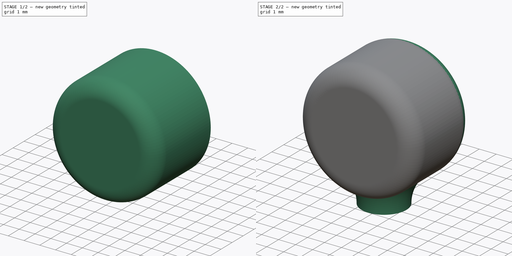
[diagram: build sequence overview — one tinted view per stage of 2, left to right]
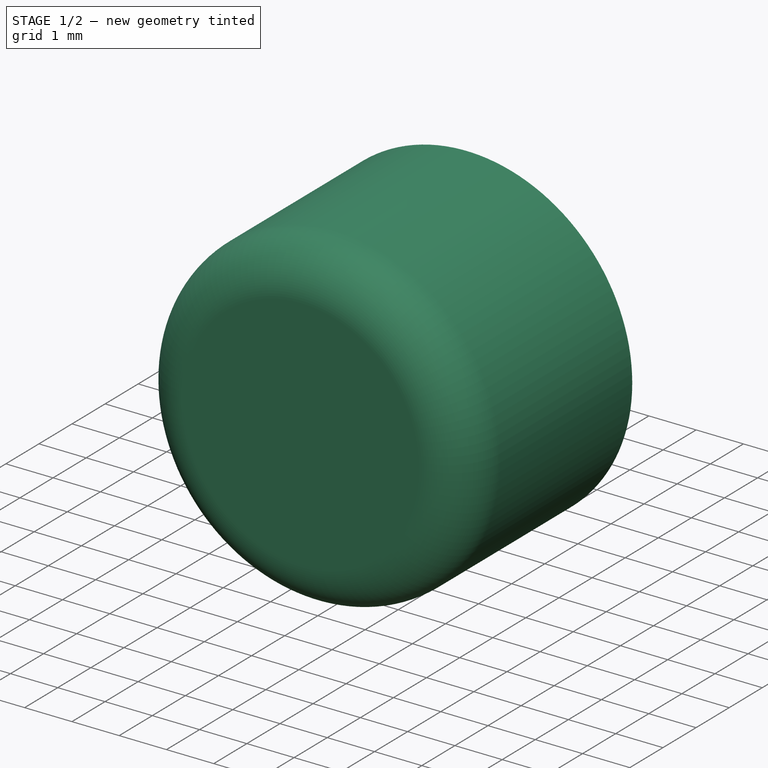
[diagram: stage 1 of 2 — iso view after this stage's code; geometry added in this stage tinted green]
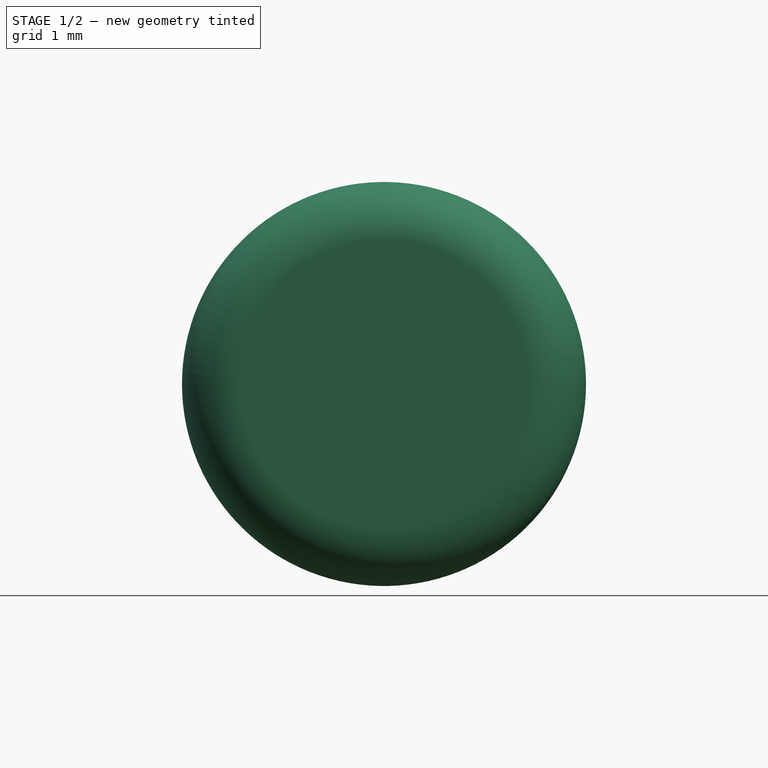
[diagram: stage 1 of 2 — front view after this stage's code; geometry added in this stage tinted green]
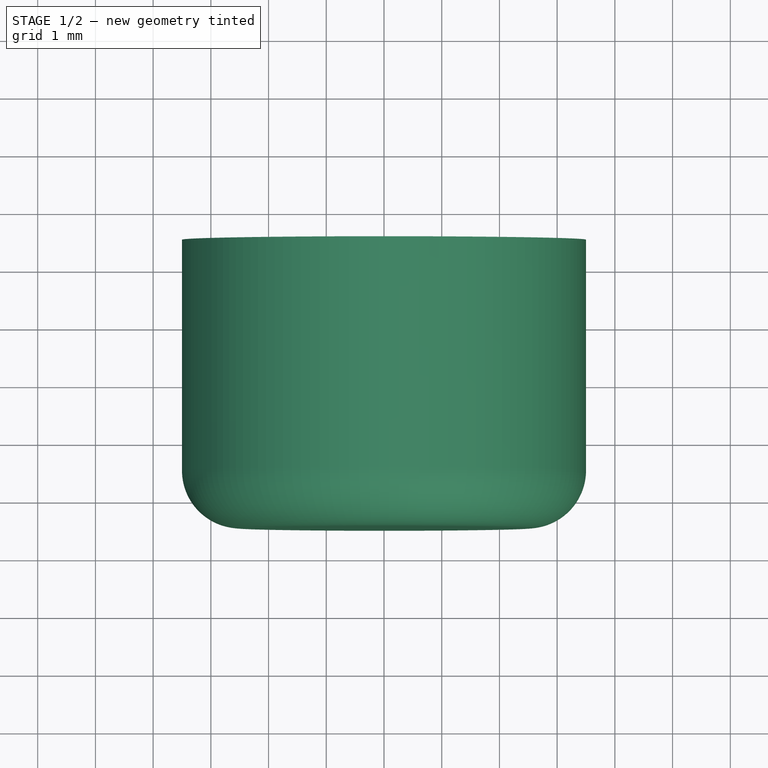
[diagram: stage 1 of 2 — top view after this stage's code; geometry added in this stage tinted green]
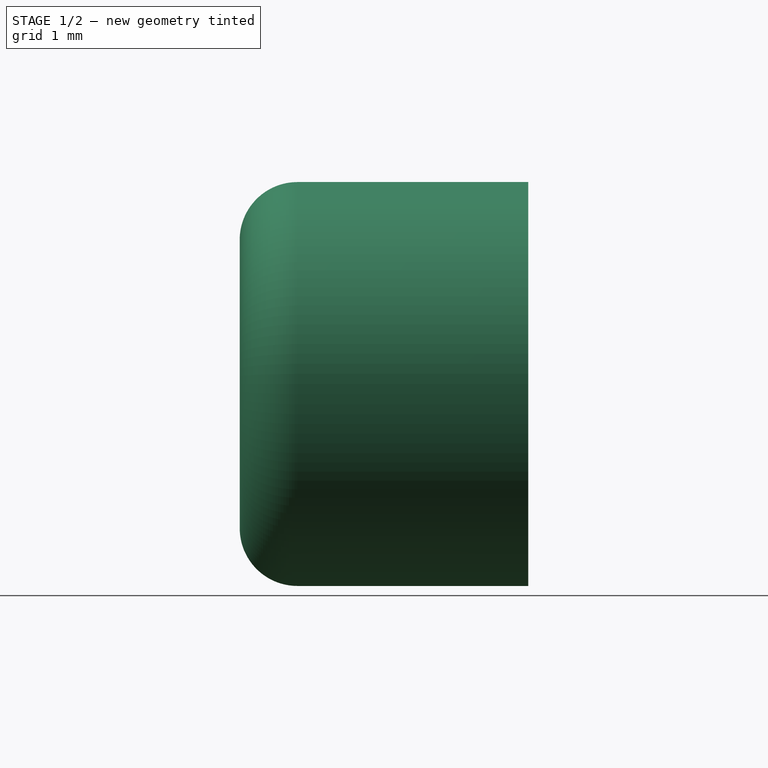
[diagram: stage 1 of 2 — right view after this stage's code; geometry added in this stage tinted green]
FCSTD DOCUMENT  (FreeCAD 0.19R)
Label: shoulder-wheel
License: All rights reserved
LicenseURL: http://en.wikipedia.org/wiki/All_rights_reserved
objects: Sketcher::SketchObject×2, PartDesign::Fillet×2, PartDesign::Pad×1, PartDesign::Revolution×1, PartDesign::Body×1
note: 11 computed .brp shape members not serialized (recipe doc carries the construction recipe); baked Part::Feature solids carry a one-line shape summary decoded from their .brp

FEATURE [Sketcher::SketchObject] Sketch
  FullyConstrained = true
  MapMode = 5
  Placement = pos=(0,0,0) rot=(1,0,0;1.5708rad)
  Support = -> [XZ_Plane]
  sketch-geometry (1):
    g0: Circle CenterX=0 CenterY=0 CenterZ=0 NormalX=0 NormalY=0 NormalZ=1 AngleXU=0 Radius=3.5
  constraints (2):
    c: Coincident(g0,g-1)
    c: Radius(g0) = 3.5
FEATURE [PartDesign::Pad] Pad
  Direction = (1,1,1)
  Length = 2.5
  Length2 = 2.5
  Placement = pos=(0,0,0) rot=(1,0,0;1.5708rad)
  Profile = -> Sketch
  Type = 4
FEATURE [PartDesign::Fillet] Fillet
  Base = -> Pad [Edge3]
  BaseFeature = -> Pad
  Placement = pos=(0,0,0) rot=(1,0,0;1.5708rad)
  Radius = 1
  SupportTransform = false
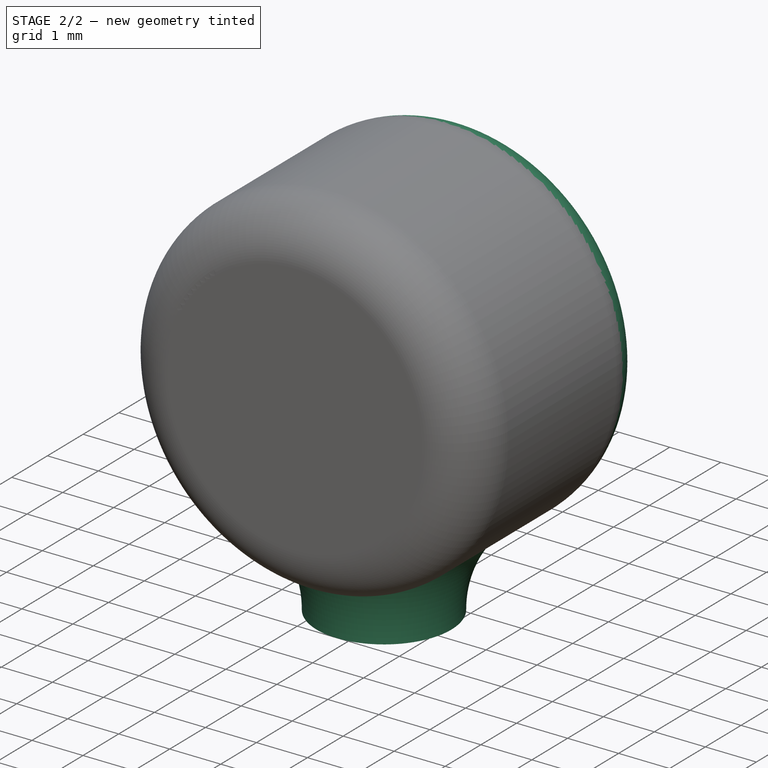
[diagram: stage 2 of 2 — iso view after this stage's code; geometry added in this stage tinted green]
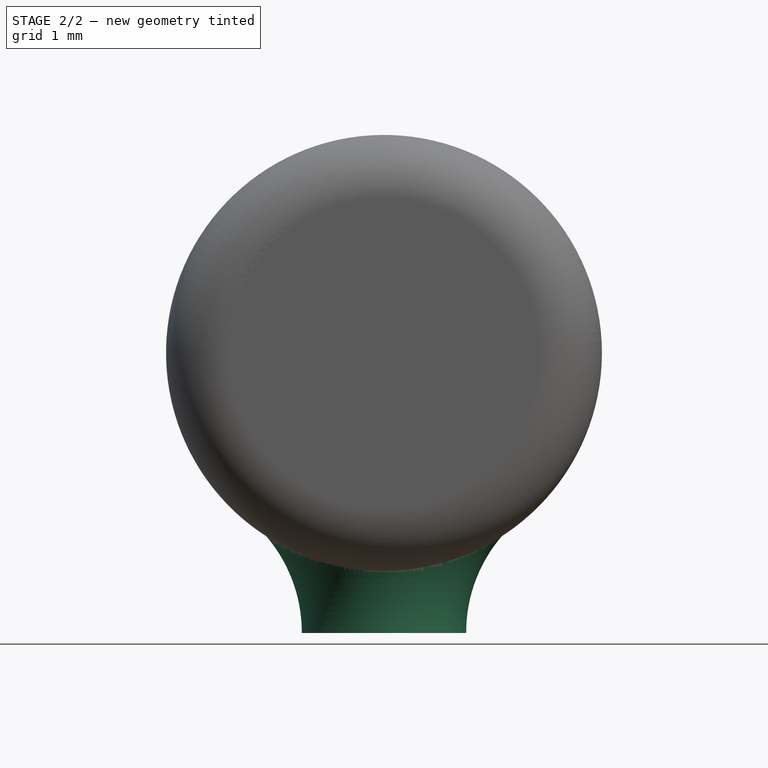
[diagram: stage 2 of 2 — front view after this stage's code; geometry added in this stage tinted green]
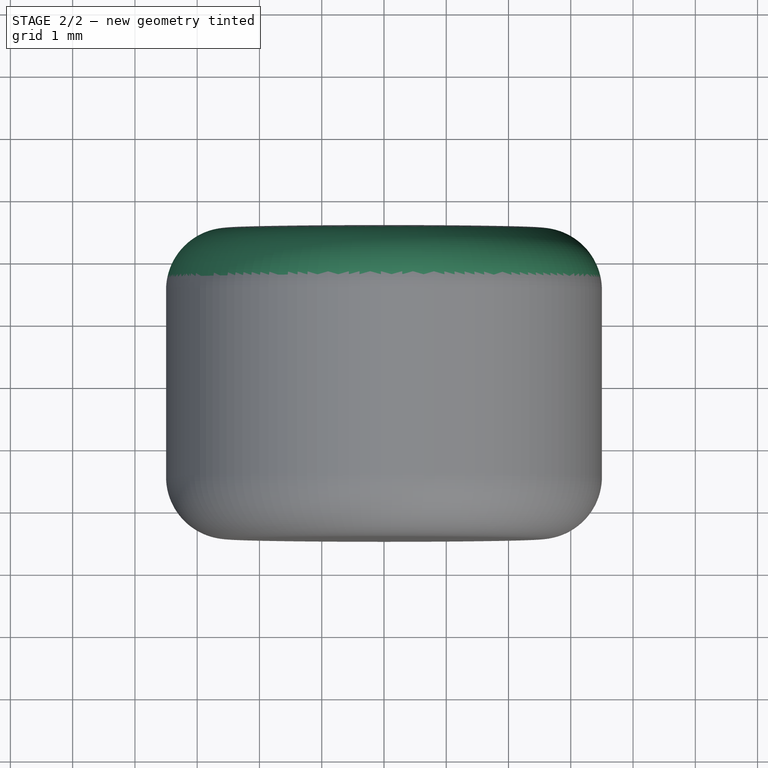
[diagram: stage 2 of 2 — top view after this stage's code; geometry added in this stage tinted green]
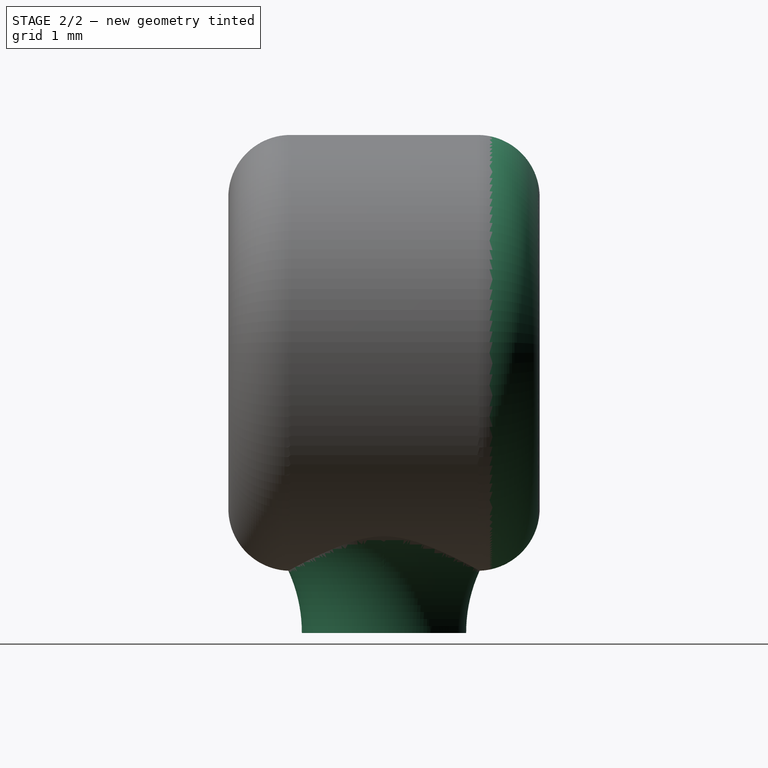
[diagram: stage 2 of 2 — right view after this stage's code; geometry added in this stage tinted green]
FEATURE [PartDesign::Fillet] Fillet001
  Base = -> Fillet [Edge3]
  BaseFeature = -> Fillet
  Placement = pos=(0,0,0) rot=(1,0,0;1.5708rad)
  Radius = 1
  SupportTransform = false
FEATURE [Sketcher::SketchObject] Sketch001
  FullyConstrained = false
  MapMode = 5
  Placement = pos=(0,0,0) rot=(1,0,0;1.5708rad)
  Support = -> [XZ_Plane]
  sketch-geometry (4):
    g0: LineSegment StartX=0 StartY=-2.5 StartZ=0 EndX=2.4 EndY=-2.5 EndZ=0
    g1: LineSegment StartX=0 StartY=-2.5 StartZ=0 EndX=0 EndY=-4.5 EndZ=0
    g2: LineSegment StartX=0 StartY=-4.5 StartZ=0 EndX=1.31997 EndY=-4.5 EndZ=0
    g3: ArcOfCircle CenterX=3.68901 CenterY=-4.4877 CenterZ=0 NormalX=0 NormalY=0 NormalZ=1 AngleXU=0 Radius=2.36907 StartAngle=2.14611 EndAngle=3.14679
  constraints (11):
    c: PointOnObject(g0,g-2)
    c: Horizontal(g0)
    c: DistanceX(g0,g0) = 2.4
    c: Distance(g0,g-1) = 2.5
    c: Coincident(g1,g0)
    c: PointOnObject(g1,g-2)
    c: DistanceY(g1,g1) = 2
    c: Coincident(g2,g1)
    c: Horizontal(g2)
    c: Coincident(g3,g0)
    c: Coincident(g3,g2)
FEATURE [PartDesign::Revolution] Revolution
  Angle = 360
  Axis = (0,-2e-16,1)
  Base = (0,0,0)
  BaseFeature = -> Fillet001
  Placement = pos=(0,0,0) rot=(1,0,0;1.5708rad)
  Profile = -> Sketch001
  ReferenceAxis = -> Sketch001 [V_Axis]
  Reversed = true
FEATURE [PartDesign::Body] Body
  Group = -> [Sketch,Pad,Fillet,Fillet001,Sketch001,Revolution]
  Origin = -> Origin
  Tip = -> Revolution
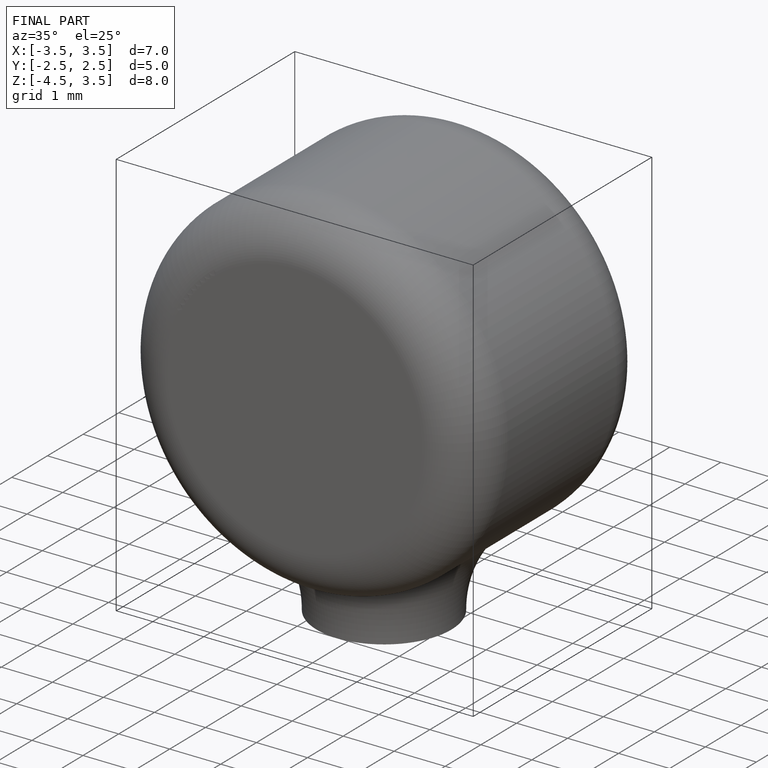
[diagram: finished part — iso view with bounding-box wireframe]
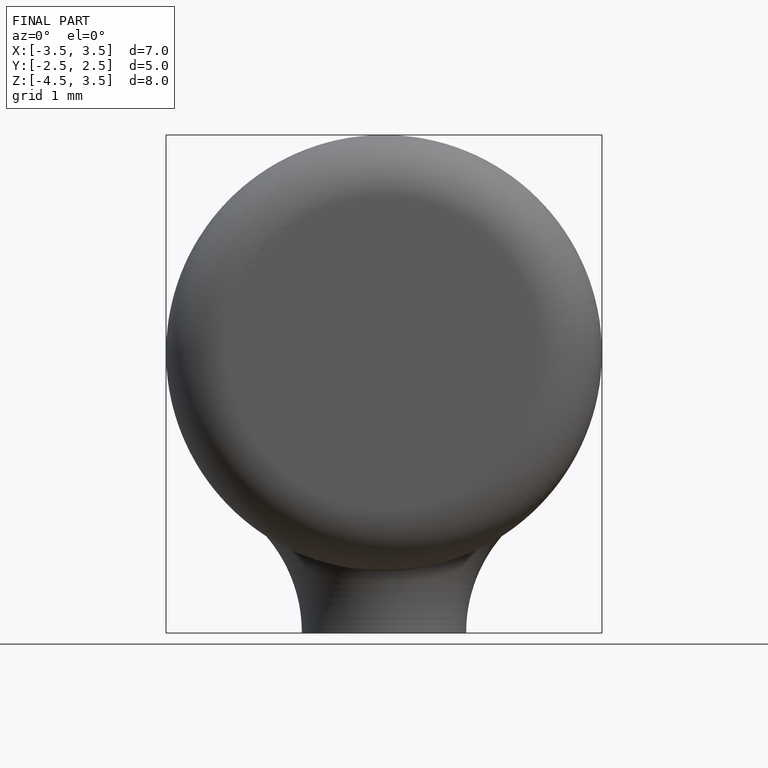
[diagram: finished part — front view with bounding-box wireframe]
